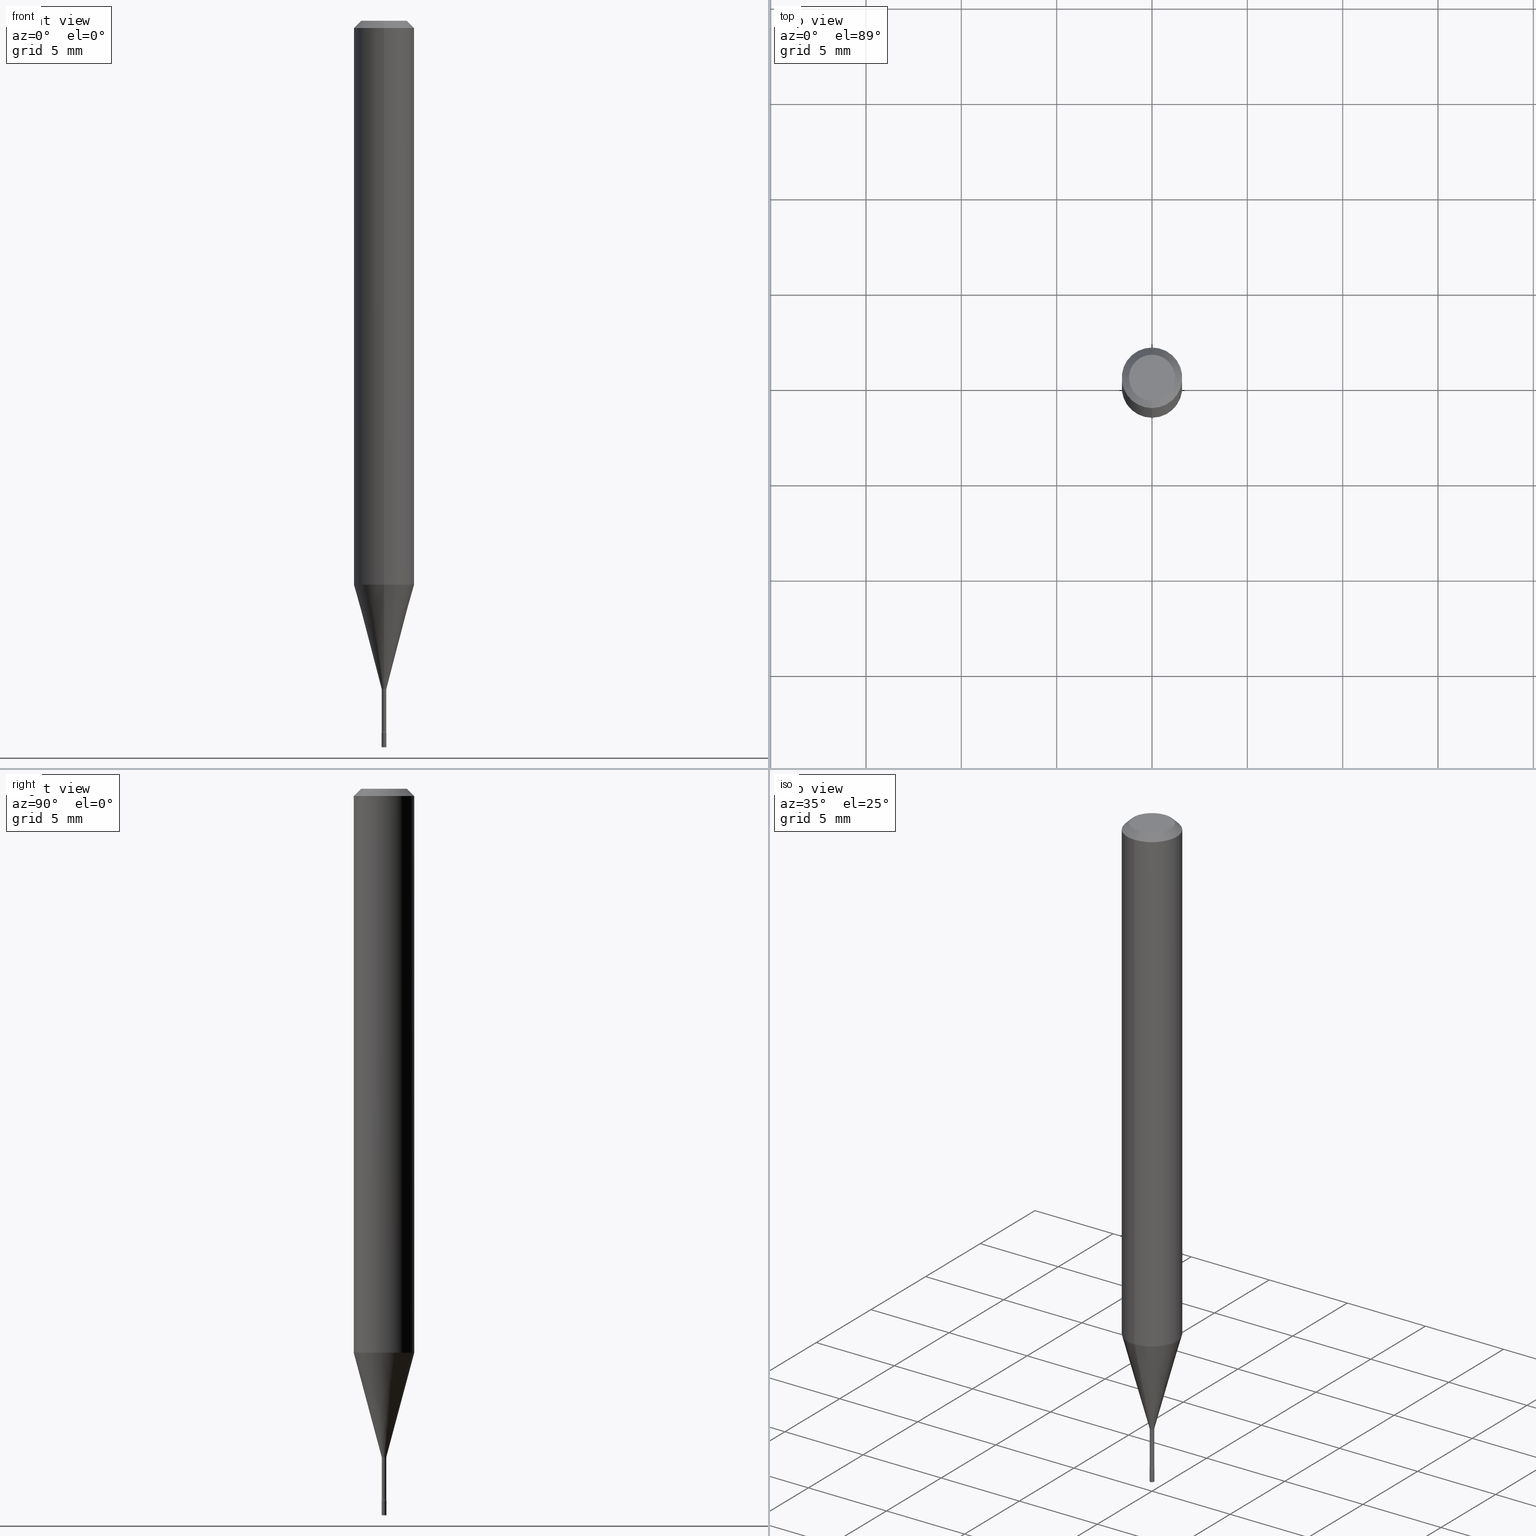
[diagram: canonical four-view strip — front | top / right | iso, engineering-drawing reading convention]
A machine part, canonical four-view strip (front | top / right | iso — engineering-drawing reading convention). The complete STEP part file that produces these views, byte-faithful:
ISO-10303-21;
HEADER;
FILE_DESCRIPTION (( 'STEP AP203' ),
    '1' );
FILE_NAME ('01339.STEP',
    '2024-03-08T21:15:00',
    ( '' ),
    ( '' ),
    'SwSTEP 2.0',
    'SolidWorks 2023',
    '' );
FILE_SCHEMA (( 'CONFIG_CONTROL_DESIGN' ));
ENDSEC;

DATA;
#1 = VECTOR ( 'NONE', #65, 39.37007874015748143 ) ;
#2 = PERSON_AND_ORGANIZATION ( #291, #173 ) ;
#3 = CARTESIAN_POINT ( 'NONE',  ( 3.367344808526216247E-29, -4.815504389611313492E-15, -1.378092501787273605 ) ) ;
#4 = VERTEX_POINT ( 'NONE', #192 ) ;
#5 = DIRECTION ( 'NONE',  ( -1.000000000000000000, 6.982962677686265922E-15, -4.876176775795935793E-29 ) ) ;
#6 = COORDINATED_UNIVERSAL_TIME_OFFSET ( 5, 0, .BEHIND. ) ;
#7 = ORIENTED_EDGE ( 'NONE', *, *, #357, .T. ) ;
#8 = CARTESIAN_POINT ( 'NONE',  ( -3.638900483453789669E-17, -0.005211112605668734299, -1.378092501787273605 ) ) ;
#9 = ORIENTED_EDGE ( 'NONE', *, *, #258, .T. ) ;
#10 = CIRCLE ( 'NONE', #306, 0.005211112605663917839 ) ;
#11 = CIRCLE ( 'NONE', #265, 0.01500000000000000638 ) ;
#12 = AXIS2_PLACEMENT_3D ( 'NONE', #70, #274, #449 ) ;
#13 = ADVANCED_FACE ( 'NONE', ( #287 ), #361, .F. ) ;
#14 = DIRECTION ( 'NONE',  ( 1.000000000000000000, -6.982962677686336130E-15, 0.000000000000000000 ) ) ;
#15 = DIRECTION ( 'NONE',  ( -6.982962677686265922E-15, -1.000000000000000000, 3.494325949358259350E-15 ) ) ;
#16 = AXIS2_PLACEMENT_3D ( 'NONE', #221, #64, #434 ) ;
#17 = PRODUCT_DEFINITION ( 'UNKNOWN', '', #468, #441 ) ;
#18 = ORIENTED_EDGE ( 'NONE', *, *, #66, .T. ) ;
#19 = DIRECTION ( 'NONE',  ( -2.445468806185136597E-29, 3.491481338843145583E-15, 1.000000000000000000 ) ) ;
#20 = PRODUCT_DEFINITION_SHAPE ( 'NONE', 'NONE',  #17 ) ;
#21 = CARTESIAN_POINT ( 'NONE',  ( 2.844915954601450546E-29, -4.068399895600381940E-15, -1.164287463322519312 ) ) ;
#22 = DIRECTION ( 'NONE',  ( -6.982962677686265922E-15, -1.000000000000000000, 4.370956789862821150E-15 ) ) ;
#23 = DIRECTION ( 'NONE',  ( -6.982962677686266711E-15, -1.000000000000000000, 3.494325949358259744E-15 ) ) ;
#24 = CIRCLE ( 'NONE', #165, 0.004999999999999997502 ) ;
#25 = LOCAL_TIME ( 16, 15, 0.000000000000000000, #374 ) ;
#26 = ADVANCED_FACE ( 'NONE', ( #407 ), #33, .T. ) ;
#27 = CARTESIAN_POINT ( 'NONE',  ( 3.376595547336323602E-29, -4.829407693671720088E-15, -1.381974787463811305 ) ) ;
#28 = CARTESIAN_POINT ( 'NONE',  ( 0.000000000000000000, 0.000000000000000000, 0.000000000000000000 ) ) ;
#29 = DIRECTION ( 'NONE',  ( 1.000000000000000000, -6.982962677686336130E-15, 0.000000000000000000 ) ) ;
#30 = PLANE ( 'NONE',  #436 ) ;
#31 = VERTEX_POINT ( 'NONE', #162 ) ;
#32 = CC_DESIGN_DATE_AND_TIME_ASSIGNMENT ( #86, #96, ( #285 ) ) ;
#33 = CONICAL_SURFACE ( 'NONE', #333, 0.005211112605663917839, 0.2617993877991496299 ) ;
#34 = CONICAL_SURFACE ( 'NONE', #237, 0.06250000000000000000, 0.7853981633974482790 ) ;
#35 = DIRECTION ( 'NONE',  ( -2.445468806185136597E-29, 3.491481338843145583E-15, 1.000000000000000000 ) ) ;
#36 = DIRECTION ( 'NONE',  ( -6.982962677686266711E-15, -1.000000000000000000, 0.000000000000000000 ) ) ;
#37 = ORIENTED_EDGE ( 'NONE', *, *, #281, .F. ) ;
#38 = DIRECTION ( 'NONE',  ( -6.982962677686266711E-15, -1.000000000000000000, 3.494325949358259350E-15 ) ) ;
#39 = DIRECTION ( 'NONE',  ( -2.445468806185136597E-29, 3.491481338843145583E-15, 1.000000000000000000 ) ) ;
#40 = DIRECTION ( 'NONE',  ( -6.982962677686266711E-15, -1.000000000000000000, 0.000000000000000000 ) ) ;
#41 = ORIENTED_EDGE ( 'NONE', *, *, #282, .T. ) ;
#42 = CARTESIAN_POINT ( 'NONE',  ( 3.491481338846799833E-17, 0.004999999999994760372, -1.500000000000000222 ) ) ;
#43 = AXIS2_PLACEMENT_3D ( 'NONE', #74, #219, #22 ) ;
#44 = AXIS2_PLACEMENT_3D ( 'NONE', #439, #72, #217 ) ;
#45 = ORIENTED_EDGE ( 'NONE', *, *, #183, .T. ) ;
#46 = PERSON_AND_ORGANIZATION ( #291, #173 ) ;
#47 = DIRECTION ( 'NONE',  ( -1.807323732225325801E-15, -0.2588190451025175753, 0.9659258262890690894 ) ) ;
#48 = PERSON_AND_ORGANIZATION_ROLE ( 'creator' ) ;
#49 = EDGE_CURVE ( 'NONE', #148, #202, #10, .T. ) ;
#50 = ADVANCED_FACE ( 'NONE', ( #440 ), #241, .T. ) ;
#51 = ORIENTED_EDGE ( 'NONE', *, *, #405, .T. ) ;
#52 = PERSON_AND_ORGANIZATION ( #291, #173 ) ;
#53 = AXIS2_PLACEMENT_3D ( 'NONE', #218, #227, #348 ) ;
#54 = DIRECTION ( 'NONE',  ( -6.982962677686266711E-15, -1.000000000000000000, 0.000000000000000000 ) ) ;
#55 = EDGE_CURVE ( 'NONE', #324, #137, #284, .T. ) ;
#56 = LINE ( 'NONE', #8, #127 ) ;
#57 = CARTESIAN_POINT ( 'NONE',  ( 1.399769189447734763E-16, 0.01969999999999517276, -1.381974787463811305 ) ) ;
#58 = ORIENTED_EDGE ( 'NONE', *, *, #357, .F. ) ;
#59 = EDGE_CURVE ( 'NONE', #199, #371, #253, .T. ) ;
#60 = LINE ( 'NONE', #271, #318 ) ;
#61 = VECTOR ( 'NONE', #477, 39.37007874015748854 ) ;
#62 = CC_DESIGN_APPROVAL ( #71, ( #17 ) ) ;
#63 = DIRECTION ( 'NONE',  ( -2.443482425279177286E-29, 3.494325949358259350E-15, 1.000000000000000000 ) ) ;
#64 = DIRECTION ( 'NONE',  ( -2.443482425279177286E-29, 3.494325949358259350E-15, 1.000000000000000000 ) ) ;
#65 = DIRECTION ( 'NONE',  ( 1.839019923739595977E-15, 0.2588190451025243477, 0.9659258262890673130 ) ) ;
#66 = EDGE_CURVE ( 'NONE', #337, #4, #491, .T. ) ;
#67 = CARTESIAN_POINT ( 'NONE',  ( -4.287811248607203282E-16, -0.06250000000000005551, -0.01499999999999981209 ) ) ;
#68 = CYLINDRICAL_SURFACE ( 'NONE', #171, 0.004999999999999997502 ) ;
#69 = CIRCLE ( 'NONE', #446, 0.04749999999999999362 ) ;
#70 = CARTESIAN_POINT ( 'NONE',  ( 3.665223637918772884E-31, -5.241488924037400118E-17, -0.01500000000000003067 ) ) ;
#71 = APPROVAL ( #207, 'UNSPECIFIED' ) ;
#72 = DIRECTION ( 'NONE',  ( 0.000000000000000000, 0.000000000000000000, 1.000000000000000000 ) ) ;
#73 = EDGE_LOOP ( 'NONE', ( #450, #268, #245, #310 ) ) ;
#74 = CARTESIAN_POINT ( 'NONE',  ( 2.844915954601450546E-29, -4.068399895600381940E-15, -1.164287463322519312 ) ) ;
#75 = ORIENTED_EDGE ( 'NONE', *, *, #496, .T. ) ;
#76 = LENGTH_MEASURE_WITH_UNIT ( LENGTH_MEASURE( 0.02539999999999999897 ), #475 );
#77 = VERTEX_POINT ( 'NONE', #499 ) ;
#78 = AXIS2_PLACEMENT_3D ( 'NONE', #423, #105, #510 ) ;
#79 = LOCAL_TIME ( 16, 15, 0.000000000000000000, #6 ) ;
#80 = DIRECTION ( 'NONE',  ( -6.982962677686265133E-15, -1.000000000000000000, 3.494325949358259350E-15 ) ) ;
#81 = CARTESIAN_POINT ( 'NONE',  ( 3.584558826531419241E-29, -5.126324140382401988E-15, -1.467015037688680357 ) ) ;
#82 = DIRECTION ( 'NONE',  ( 2.443482425279177006E-29, -3.494325949358259350E-15, -1.000000000000000000 ) ) ;
#83 = EDGE_LOOP ( 'NONE', ( #300, #115 ) ) ;
#84 = FACE_OUTER_BOUND ( 'NONE', #486, .T. ) ;
#85 = EDGE_LOOP ( 'NONE', ( #481, #9, #345, #213 ) ) ;
#86 = DATE_AND_TIME ( #456, #145 ) ;
#87 = DIRECTION ( 'NONE',  ( 6.982962677686265922E-15, 1.000000000000000000, -3.494325949358259350E-15 ) ) ;
#88 = ORIENTED_EDGE ( 'NONE', *, *, #428, .T. ) ;
#89 = FACE_OUTER_BOUND ( 'NONE', #83, .T. ) ;
#90 = AXIS2_PLACEMENT_3D ( 'NONE', #387, #500, #309 ) ;
#91 = LOCAL_TIME ( 16, 15, 0.000000000000000000, #174 ) ;
#92 = APPROVAL_STATUS ( 'not_yet_approved' ) ;
#93 = CC_DESIGN_PERSON_AND_ORGANIZATION_ASSIGNMENT ( #129, #293, ( #468 ) ) ;
#94 = EDGE_CURVE ( 'NONE', #399, #31, #97, .T. ) ;
#95 = EDGE_LOOP ( 'NONE', ( #280, #120 ) ) ;
#96 = DATE_TIME_ROLE ( 'classification_date' ) ;
#97 = CIRCLE ( 'NONE', #334, 0.06250000000000000000 ) ;
#98 = DIRECTION ( 'NONE',  ( -2.443482425279177286E-29, 3.494325949358259350E-15, 1.000000000000000000 ) ) ;
#99 = VECTOR ( 'NONE', #314, 39.37007874015748143 ) ;
#100 = CARTESIAN_POINT ( 'NONE',  ( 3.339550858076058473E-17, 0.004699999999995169847, -1.381974787463811305 ) ) ;
#101 = DIRECTION ( 'NONE',  ( -2.443482425279177286E-29, 3.494325949358259350E-15, 1.000000000000000000 ) ) ;
#102 = CYLINDRICAL_SURFACE ( 'NONE', #325, 0.06250000000000000000 ) ;
#103 = CIRCLE ( 'NONE', #474, 0.01500000000000001853 ) ;
#104 = DIRECTION ( 'NONE',  ( -6.982962677686265133E-15, -1.000000000000000000, 3.494325949358259350E-15 ) ) ;
#105 = DIRECTION ( 'NONE',  ( -1.000000000000000000, 6.982962677686265922E-15, -4.883557194083112340E-29 ) ) ;
#106 = ADVANCED_FACE ( 'NONE', ( #181 ), #133, .F. ) ;
#107 = FACE_OUTER_BOUND ( 'NONE', #254, .T. ) ;
#108 = FACE_OUTER_BOUND ( 'NONE', #164, .T. ) ;
#109 = DIRECTION ( 'NONE',  ( -6.982962677686266711E-15, -1.000000000000000000, 0.000000000000000000 ) ) ;
#110 = AXIS2_PLACEMENT_3D ( 'NONE', #267, #225, #392 ) ;
#111 = CC_DESIGN_APPROVAL ( #519, ( #285 ) ) ;
#112 = PRODUCT_RELATED_PRODUCT_CATEGORY ( 'detail', '', ( #131 ) ) ;
#113 = CARTESIAN_POINT ( 'NONE',  ( 3.376831105346749241E-29, -4.829070361193661062E-15, -1.381974787463811305 ) ) ;
#114 = CARTESIAN_POINT ( 'NONE',  ( -0.004999999999999997502, -5.149322651394067240E-15, -1.500000000000000222 ) ) ;
#115 = ORIENTED_EDGE ( 'NONE', *, *, #438, .F. ) ;
#116 = EDGE_LOOP ( 'NONE', ( #209, #410, #88, #382 ) ) ;
#117 = VECTOR ( 'NONE', #462, 39.37007874015748143 ) ;
#118 = CARTESIAN_POINT ( 'NONE',  ( 4.440892098500912124E-16, 0.06249999999999995143, -0.01500000000000024751 ) ) ;
#119 = EDGE_CURVE ( 'NONE', #228, #77, #147, .T. ) ;
#120 = ORIENTED_EDGE ( 'NONE', *, *, #405, .F. ) ;
#121 = CARTESIAN_POINT ( 'NONE',  ( 3.376595547336323602E-29, -4.829407693671720088E-15, -1.381974787463811305 ) ) ;
#122 = ORIENTED_EDGE ( 'NONE', *, *, #94, .T. ) ;
#123 = CARTESIAN_POINT ( 'NONE',  ( 3.316907271900976096E-16, 0.04749999999999999362, -1.803698785587178532E-16 ) ) ;
#124 = ORIENTED_EDGE ( 'NONE', *, *, #59, .F. ) ;
#125 = SECURITY_CLASSIFICATION_LEVEL ( 'unclassified' ) ;
#126 = CLOSED_SHELL ( 'NONE', ( #317, #430, #313, #169 ) ) ;
#127 = VECTOR ( 'NONE', #47, 39.37007874015748854 ) ;
#128 = ADVANCED_FACE ( 'NONE', ( #89 ), #247, .F. ) ;
#129 = PERSON_AND_ORGANIZATION ( #291, #173 ) ;
#130 = COORDINATED_UNIVERSAL_TIME_OFFSET ( 5, 0, .BEHIND. ) ;
#131 = PRODUCT ( '01339', '01339', '', ( #170 ) ) ;
#132 = VERTEX_POINT ( 'NONE', #150 ) ;
#133 = TOROIDAL_SURFACE ( 'NONE', #453, 0.01970000000000000223, 0.01500000000000001679 ) ;
#134 = CIRCLE ( 'NONE', #239, 0.004699999999999999317 ) ;
#135 = PLANE ( 'NONE',  #178 ) ;
#136 = CARTESIAN_POINT ( 'NONE',  ( 0.000000000000000000, 0.000000000000000000, 0.000000000000000000 ) ) ;
#137 = VERTEX_POINT ( 'NONE', #257 ) ;
#138 = FACE_OUTER_BOUND ( 'NONE', #389, .T. ) ;
#139 = DIRECTION ( 'NONE',  ( 1.000000000000000000, -7.105427357601001070E-15, 4.926350344973703623E-29 ) ) ;
#140 = ORIENTED_EDGE ( 'NONE', *, *, #321, .T. ) ;
#141 = EDGE_CURVE ( 'NONE', #408, #363, #205, .T. ) ;
#142 = EDGE_CURVE ( 'NONE', #228, #160, #498, .T. ) ;
#143 = DIRECTION ( 'NONE',  ( -6.982962677686265922E-15, -1.000000000000000000, 4.370956789862821150E-15 ) ) ;
#144 = CIRCLE ( 'NONE', #292, 0.005211112605663917839 ) ;
#145 = LOCAL_TIME ( 16, 15, 0.000000000000000000, #211 ) ;
#146 = ORIENTED_EDGE ( 'NONE', *, *, #266, .T. ) ;
#147 = LINE ( 'NONE', #200, #155 ) ;
#148 = VERTEX_POINT ( 'NONE', #234 ) ;
#149 = FACE_OUTER_BOUND ( 'NONE', #289, .T. ) ;
#150 = CARTESIAN_POINT ( 'NONE',  ( -3.281992458508968664E-17, -0.004700000000005138436, -1.467015037688680357 ) ) ;
#151 = CARTESIAN_POINT ( 'NONE',  ( -3.281992458512549353E-17, -0.004700000000000006256, 1.642333196198383854E-17 ) ) ;
#152 = CARTESIAN_POINT ( 'NONE',  ( 3.491481338846726493E-17, 0.004999999999994865323, -1.470000000000000195 ) ) ;
#153 = ORIENTED_EDGE ( 'NONE', *, *, #448, .T. ) ;
#154 =( CONVERSION_BASED_UNIT ( 'INCH', #76 ) LENGTH_UNIT ( ) NAMED_UNIT ( #311 ) );
#155 = VECTOR ( 'NONE', #429, 39.37007874015748143 ) ;
#156 = APPROVAL_PERSON_ORGANIZATION ( #487, #71, #372 ) ;
#157 = LINE ( 'NONE', #360, #99 ) ;
#158 = DIRECTION ( 'NONE',  ( -2.443482425279177286E-29, 3.494325949358259350E-15, 1.000000000000000000 ) ) ;
#159 = DIRECTION ( 'NONE',  ( -2.443482425279177286E-29, 3.494325949358259350E-15, 1.000000000000000000 ) ) ;
#160 = VERTEX_POINT ( 'NONE', #114 ) ;
#161 = APPLICATION_PROTOCOL_DEFINITION ( 'international standard', 'config_control_design', 1994, #244 ) ;
#162 = CARTESIAN_POINT ( 'NONE',  ( -4.364351673553912750E-16, -0.06250000000000005551, -0.01499999999999981209 ) ) ;
#163 = ADVANCED_FACE ( 'NONE', ( #84 ), #243, .T. ) ;
#164 = EDGE_LOOP ( 'NONE', ( #331, #403, #351, #451 ) ) ;
#165 = AXIS2_PLACEMENT_3D ( 'NONE', #347, #505, #304 ) ;
#166 = LOCAL_TIME ( 16, 15, 0.000000000000000000, #130 ) ;
#167 = APPROVAL_DATE_TIME ( #175, #452 ) ;
#168 = DATE_AND_TIME ( #421, #25 ) ;
#169 = ADVANCED_FACE ( 'NONE', ( #409 ), #135, .T. ) ;
#170 = MECHANICAL_CONTEXT ( 'NONE', #244, 'mechanical' ) ;
#171 = AXIS2_PLACEMENT_3D ( 'NONE', #136, #19, #303 ) ;
#172 = ORIENTED_EDGE ( 'NONE', *, *, #55, .T. ) ;
#173 = ORGANIZATION ( 'UNSPECIFIED', 'UNSPECIFIED', '' ) ;
#174 = COORDINATED_UNIVERSAL_TIME_OFFSET ( 5, 0, .BEHIND. ) ;
#175 = DATE_AND_TIME ( #415, #79 ) ;
#176 = EDGE_CURVE ( 'NONE', #202, #148, #144, .T. ) ;
#177 = DIRECTION ( 'NONE',  ( -6.982962677686266711E-15, -1.000000000000000000, 0.000000000000000000 ) ) ;
#178 = AXIS2_PLACEMENT_3D ( 'NONE', #42, #369, #5 ) ;
#179 = VERTEX_POINT ( 'NONE', #340 ) ;
#180 = CARTESIAN_POINT ( 'NONE',  ( 3.702718207185751166E-17, 0.005211112605659102247, -1.378092501787273605 ) ) ;
#181 = FACE_OUTER_BOUND ( 'NONE', #116, .T. ) ;
#182 = DIRECTION ( 'NONE',  ( -2.443482425279177286E-29, 3.494325949358259350E-15, 1.000000000000000000 ) ) ;
#183 = EDGE_CURVE ( 'NONE', #179, #132, #232, .T. ) ;
#184 = EDGE_CURVE ( 'NONE', #179, #363, #11, .T. ) ;
#185 = LINE ( 'NONE', #180, #1 ) ;
#186 = CARTESIAN_POINT ( 'NONE',  ( 3.376831105346749241E-29, -4.829070361193661062E-15, -1.381974787463811305 ) ) ;
#187 = LINE ( 'NONE', #432, #212 ) ;
#188 = AXIS2_PLACEMENT_3D ( 'NONE', #28, #182, #190 ) ;
#189 = CIRCLE ( 'NONE', #276, 0.004999999999999997502 ) ;
#190 = DIRECTION ( 'NONE',  ( -6.982962677686265922E-15, -1.000000000000000000, 3.494325949358259350E-15 ) ) ;
#191 = DIRECTION ( 'NONE',  ( -2.443482425279177286E-29, 3.494325949358259350E-15, 1.000000000000000000 ) ) ;
#192 = CARTESIAN_POINT ( 'NONE',  ( -3.773273898774340269E-16, -0.04749999999999999362, 1.372016906661161524E-16 ) ) ;
#193 = AXIS2_PLACEMENT_3D ( 'NONE', #471, #263, #463 ) ;
#194 = ORIENTED_EDGE ( 'NONE', *, *, #66, .F. ) ;
#195 = ORIENTED_EDGE ( 'NONE', *, *, #183, .F. ) ;
#196 = AXIS2_PLACEMENT_3D ( 'NONE', #81, #191, #80 ) ;
#197 = DIRECTION ( 'NONE',  ( -2.443482425279177286E-29, 3.494325949358259350E-15, 1.000000000000000000 ) ) ;
#198 = ADVANCED_FACE ( 'NONE', ( #108 ), #425, .F. ) ;
#199 = VERTEX_POINT ( 'NONE', #341 ) ;
#200 = CARTESIAN_POINT ( 'NONE',  ( 0.004999999999999997502, -3.491481338843131630E-17, 2.438088387897967108E-31 ) ) ;
#201 = DIRECTION ( 'NONE',  ( 1.000000000000000000, -6.982962677686265922E-15, 4.876176775795935793E-29 ) ) ;
#202 = VERTEX_POINT ( 'NONE', #391 ) ;
#203 = DIRECTION ( 'NONE',  ( -2.443482425279177286E-29, 3.494325949358259350E-15, 1.000000000000000000 ) ) ;
#204 = ORIENTED_EDGE ( 'NONE', *, *, #390, .T. ) ;
#205 = CIRCLE ( 'NONE', #275, 0.005000000000000001839 ) ;
#206 = AXIS2_PLACEMENT_3D ( 'NONE', #286, #437, #233 ) ;
#207 = APPROVAL_STATUS ( 'not_yet_approved' ) ;
#208 = ORIENTED_EDGE ( 'NONE', *, *, #520, .F. ) ;
#209 = ORIENTED_EDGE ( 'NONE', *, *, #176, .F. ) ;
#210 = MANIFOLD_SOLID_BREP ( 'Body-Move/Copy2[2]', #489 ) ;
#211 = COORDINATED_UNIVERSAL_TIME_OFFSET ( 5, 0, .BEHIND. ) ;
#212 = VECTOR ( 'NONE', #354, 39.37007874015748143 ) ;
#213 = ORIENTED_EDGE ( 'NONE', *, *, #240, .F. ) ;
#214 = CIRCLE ( 'NONE', #206, 0.005000000000000001839 ) ;
#215 = SHAPE_DEFINITION_REPRESENTATION ( #20, #501 ) ;
#216 = EDGE_CURVE ( 'NONE', #4, #31, #469, .T. ) ;
#217 = DIRECTION ( 'NONE',  ( 1.000000000000000000, 0.000000000000000000, 0.000000000000000000 ) ) ;
#218 = CARTESIAN_POINT ( 'NONE',  ( 3.584625462212559973E-29, -5.126228714294341744E-15, -1.467015037688680357 ) ) ;
#219 = DIRECTION ( 'NONE',  ( -2.443482425279177286E-29, 3.494325949358259350E-15, 1.000000000000000000 ) ) ;
#220 = CARTESIAN_POINT ( 'NONE',  ( 0.000000000000000000, 0.000000000000000000, 0.000000000000000000 ) ) ;
#221 = CARTESIAN_POINT ( 'NONE',  ( 3.584625462212559973E-29, -5.126228714294341744E-15, -1.467015037688680357 ) ) ;
#222 = AXIS2_PLACEMENT_3D ( 'NONE', #152, #315, #485 ) ;
#223 = DIRECTION ( 'NONE',  ( -6.982962677686265922E-15, -1.000000000000000000, 3.483106191921935554E-15 ) ) ;
#224 = VECTOR ( 'NONE', #197, 39.37007874015748143 ) ;
#225 = DIRECTION ( 'NONE',  ( -1.000000000000000000, 6.982962677686265922E-15, -4.883557194083112340E-29 ) ) ;
#226 = ADVANCED_FACE ( 'NONE', ( #298 ), #359, .F. ) ;
#227 = DIRECTION ( 'NONE',  ( -2.443482425279177286E-29, 3.494325949358259350E-15, 1.000000000000000000 ) ) ;
#228 = VERTEX_POINT ( 'NONE', #342 ) ;
#229 = DIRECTION ( 'NONE',  ( 7.105427357601000281E-15, 1.000000000000000000, 0.000000000000000000 ) ) ;
#230 = DIRECTION ( 'NONE',  ( 6.982962677686265922E-15, 1.000000000000000000, -3.483106191921935554E-15 ) ) ;
#231 = DIRECTION ( 'NONE',  ( 2.443482425279177286E-29, -3.494325949358259350E-15, -1.000000000000000000 ) ) ;
#232 = CIRCLE ( 'NONE', #53, 0.004700000000000012328 ) ;
#233 = DIRECTION ( 'NONE',  ( -6.982962677686266711E-15, -1.000000000000000000, 0.000000000000000000 ) ) ;
#234 = CARTESIAN_POINT ( 'NONE',  ( -3.638900483453789669E-17, -0.005211112605668734299, -1.378092501787273605 ) ) ;
#235 = CARTESIAN_POINT ( 'NONE',  ( 3.668203209277704895E-29, -5.237222008264718177E-15, -1.500000000000000222 ) ) ;
#236 = DIRECTION ( 'NONE',  ( 1.000000000000000000, -6.982962677686336130E-15, 0.000000000000000000 ) ) ;
#237 = AXIS2_PLACEMENT_3D ( 'NONE', #301, #231, #230 ) ;
#238 = CC_DESIGN_PERSON_AND_ORGANIZATION_ASSIGNMENT ( #370, #48, ( #17 ) ) ;
#239 = AXIS2_PLACEMENT_3D ( 'NONE', #113, #514, #447 ) ;
#240 = EDGE_CURVE ( 'NONE', #148, #137, #56, .T. ) ;
#241 = CYLINDRICAL_SURFACE ( 'NONE', #384, 0.004700000000000006256 ) ;
#242 = FACE_OUTER_BOUND ( 'NONE', #476, .T. ) ;
#243 = CYLINDRICAL_SURFACE ( 'NONE', #515, 0.004700000000000006256 ) ;
#244 = APPLICATION_CONTEXT ( 'configuration controlled 3d designs of mechanical parts and assemblies' ) ;
#245 = ORIENTED_EDGE ( 'NONE', *, *, #240, .T. ) ;
#246 = ORIENTED_EDGE ( 'NONE', *, *, #496, .F. ) ;
#247 = PLANE ( 'NONE',  #222 ) ;
#248 = DATE_AND_TIME ( #290, #166 ) ;
#249 = PERSON_AND_ORGANIZATION_ROLE ( 'classification_officer' ) ;
#250 = ORIENTED_EDGE ( 'NONE', *, *, #322, .T. ) ;
#251 = CARTESIAN_POINT ( 'NONE',  ( 3.584558826531419241E-29, -5.126324140382401988E-15, -1.467015037688680357 ) ) ;
#252 = ADVANCED_FACE ( 'NONE', ( #455 ), #34, .T. ) ;
#253 = CIRCLE ( 'NONE', #368, 0.004699999999999999317 ) ;
#254 = EDGE_LOOP ( 'NONE', ( #366, #51, #356, #442 ) ) ;
#255 = TOROIDAL_SURFACE ( 'NONE', #196, 0.01970000000000001958, 0.01500000000000000638 ) ;
#256 = APPROVAL_DATE_TIME ( #495, #71 ) ;
#257 = CARTESIAN_POINT ( 'NONE',  ( -4.364351673553632704E-16, -0.06250000000000409395, -1.164287463322519089 ) ) ;
#258 = EDGE_CURVE ( 'NONE', #202, #324, #185, .T. ) ;
#259 = VERTEX_POINT ( 'NONE', #386 ) ;
#260 = DIRECTION ( 'NONE',  ( -2.443482425279177286E-29, 3.494325949358259350E-15, 1.000000000000000000 ) ) ;
#261 = CC_DESIGN_PERSON_AND_ORGANIZATION_ASSIGNMENT ( #328, #297, ( #468 ) ) ;
#262 = DIRECTION ( 'NONE',  ( -2.443482425279177286E-29, 3.494325949358259350E-15, 1.000000000000000000 ) ) ;
#263 = DIRECTION ( 'NONE',  ( -2.443482425279177286E-29, 3.494325949358259350E-15, 1.000000000000000000 ) ) ;
#264 = AXIS2_PLACEMENT_3D ( 'NONE', #123, #82, #87 ) ;
#265 = AXIS2_PLACEMENT_3D ( 'NONE', #397, #139, #472 ) ;
#266 = EDGE_CURVE ( 'NONE', #132, #179, #308, .T. ) ;
#267 = CARTESIAN_POINT ( 'NONE',  ( -1.375643647503837156E-16, -0.01970000000000514395, -1.467015037688680357 ) ) ;
#268 = ORIENTED_EDGE ( 'NONE', *, *, #176, .T. ) ;
#269 = CARTESIAN_POINT ( 'NONE',  ( 4.440892098500909166E-16, 0.06249999999999592687, -1.164287463322519756 ) ) ;
#270 = CARTESIAN_POINT ( 'NONE',  ( 7.032047229781433720E-46, -1.005624794265939985E-31, -2.877879192840109893E-17 ) ) ;
#271 = CARTESIAN_POINT ( 'NONE',  ( 4.364351673553919652E-16, 0.06249999999999995143, -0.01500000000000024751 ) ) ;
#272 = ORIENTED_EDGE ( 'NONE', *, *, #428, .F. ) ;
#273 = EDGE_CURVE ( 'NONE', #132, #408, #394, .T. ) ;
#274 = DIRECTION ( 'NONE',  ( 2.443482425279177286E-29, -3.494325949358259350E-15, -1.000000000000000000 ) ) ;
#275 = AXIS2_PLACEMENT_3D ( 'NONE', #512, #316, #177 ) ;
#276 = AXIS2_PLACEMENT_3D ( 'NONE', #323, #39, #29 ) ;
#277 = FACE_OUTER_BOUND ( 'NONE', #484, .T. ) ;
#278 = DIRECTION ( 'NONE',  ( -2.443482425279177286E-29, 3.494325949358259350E-15, 1.000000000000000000 ) ) ;
#279 = ORIENTED_EDGE ( 'NONE', *, *, #281, .T. ) ;
#280 = ORIENTED_EDGE ( 'NONE', *, *, #142, .F. ) ;
#281 = EDGE_CURVE ( 'NONE', #31, #399, #413, .T. ) ;
#282 = EDGE_CURVE ( 'NONE', #337, #399, #60, .T. ) ;
#283 = CARTESIAN_POINT ( 'NONE',  ( 3.668203209277704895E-29, -5.237222008264718177E-15, -1.500000000000000222 ) ) ;
#284 = CIRCLE ( 'NONE', #43, 0.06250000000000000000 ) ;
#285 = SECURITY_CLASSIFICATION ( '', '', #125 ) ;
#286 = CARTESIAN_POINT ( 'NONE',  ( 3.591919165160390936E-29, -5.136659145556641836E-15, -1.470000000000000195 ) ) ;
#287 = FACE_OUTER_BOUND ( 'NONE', #457, .T. ) ;
#288 = ORIENTED_EDGE ( 'NONE', *, *, #216, .F. ) ;
#289 = EDGE_LOOP ( 'NONE', ( #58, #172, #365, #388 ) ) ;
#290 = CALENDAR_DATE ( 2024, 8, 3 ) ;
#291 = PERSON ( 'UNSPECIFIED', 'UNSPECIFIED', 'UNSPECIFIED', ('UNSPECIFIED'), ('UNSPECIFIED'), ('UNSPECIFIED') ) ;
#292 = AXIS2_PLACEMENT_3D ( 'NONE', #379, #459, #54 ) ;
#293 = PERSON_AND_ORGANIZATION_ROLE ( 'design_supplier' ) ;
#294 = PERSON_AND_ORGANIZATION_ROLE ( 'design_owner' ) ;
#295 = EDGE_CURVE ( 'NONE', #202, #371, #103, .T. ) ;
#296 = ORIENTED_EDGE ( 'NONE', *, *, #464, .F. ) ;
#297 = PERSON_AND_ORGANIZATION_ROLE ( 'creator' ) ;
#298 = FACE_OUTER_BOUND ( 'NONE', #443, .T. ) ;
#299 = CIRCLE ( 'NONE', #375, 0.06250000000000000000 ) ;
#300 = ORIENTED_EDGE ( 'NONE', *, *, #141, .F. ) ;
#301 = CARTESIAN_POINT ( 'NONE',  ( 3.665223637918772884E-31, -5.241488924037400118E-17, -0.01500000000000003067 ) ) ;
#302 = DIRECTION ( 'NONE',  ( -2.445468806185136597E-29, 3.491481338843145583E-15, 1.000000000000000000 ) ) ;
#303 = DIRECTION ( 'NONE',  ( 1.000000000000000000, -6.982962677686266711E-15, 4.876176775795936914E-29 ) ) ;
#304 = DIRECTION ( 'NONE',  ( 1.000000000000000000, -6.982962677686336130E-15, 0.000000000000000000 ) ) ;
#305 = DIRECTION ( 'NONE',  ( -6.982962677686266711E-15, -1.000000000000000000, 3.494325949358259350E-15 ) ) ;
#306 = AXIS2_PLACEMENT_3D ( 'NONE', #3, #278, #36 ) ;
#307 = ORIENTED_EDGE ( 'NONE', *, *, #119, .F. ) ;
#308 = CIRCLE ( 'NONE', #16, 0.004700000000000012328 ) ;
#309 = DIRECTION ( 'NONE',  ( 1.000000000000000000, -6.982962677686266711E-15, 4.876176775795936914E-29 ) ) ;
#310 = ORIENTED_EDGE ( 'NONE', *, *, #55, .F. ) ;
#311 = DIMENSIONAL_EXPONENTS ( 1.000000000000000000, 0.000000000000000000, 0.000000000000000000, 0.000000000000000000, 0.000000000000000000, 0.000000000000000000, 0.000000000000000000 ) ;
#312 = CYLINDRICAL_SURFACE ( 'NONE', #188, 0.06250000000000000000 ) ;
#313 = ADVANCED_FACE ( 'NONE', ( #107 ), #470, .T. ) ;
#314 = DIRECTION ( 'NONE',  ( -2.443482425279177286E-29, 3.494325949358259350E-15, 1.000000000000000000 ) ) ;
#315 = DIRECTION ( 'NONE',  ( -2.443482425279177006E-29, 3.494325949358259350E-15, 1.000000000000000000 ) ) ;
#316 = DIRECTION ( 'NONE',  ( -2.443482425279177286E-29, 3.494325949358259350E-15, 1.000000000000000000 ) ) ;
#317 = ADVANCED_FACE ( 'NONE', ( #138 ), #68, .T. ) ;
#318 = VECTOR ( 'NONE', #346, 39.37007874015748854 ) ;
#319 = CARTESIAN_POINT ( 'NONE',  ( 3.339550858072474703E-17, 0.004700000000000006256, -1.642333196198383854E-17 ) ) ;
#320 = DIRECTION ( 'NONE',  ( -6.982962677686265922E-15, -1.000000000000000000, 3.494325949358258956E-15 ) ) ;
#321 = EDGE_CURVE ( 'NONE', #148, #199, #467, .T. ) ;
#322 = EDGE_CURVE ( 'NONE', #137, #324, #299, .T. ) ;
#323 = CARTESIAN_POINT ( 'NONE',  ( 3.594839145092150820E-29, -5.132477568099424807E-15, -1.470000000000000195 ) ) ;
#324 = VERTEX_POINT ( 'NONE', #269 ) ;
#325 = AXIS2_PLACEMENT_3D ( 'NONE', #383, #260, #15 ) ;
#326 = ORIENTED_EDGE ( 'NONE', *, *, #448, .F. ) ;
#327 = CC_DESIGN_SECURITY_CLASSIFICATION ( #285, ( #468 ) ) ;
#328 = PERSON_AND_ORGANIZATION ( #291, #173 ) ;
#329 = APPLICATION_CONTEXT ( 'configuration controlled 3d designs of mechanical parts and assemblies' ) ;
#330 = EDGE_LOOP ( 'NONE', ( #402, #493, #279, #420 ) ) ;
#331 = ORIENTED_EDGE ( 'NONE', *, *, #184, .F. ) ;
#332 = APPLICATION_PROTOCOL_DEFINITION ( 'international standard', 'config_control_design', 1994, #329 ) ;
#333 = AXIS2_PLACEMENT_3D ( 'NONE', #518, #158, #40 ) ;
#334 = AXIS2_PLACEMENT_3D ( 'NONE', #426, #63, #223 ) ;
#335 = CONICAL_SURFACE ( 'NONE', #12, 0.06250000000000000000, 0.7853981633974482790 ) ;
#336 = CC_DESIGN_PERSON_AND_ORGANIZATION_ASSIGNMENT ( #2, #294, ( #131 ) ) ;
#337 = VERTEX_POINT ( 'NONE', #349 ) ;
#338 = EDGE_CURVE ( 'NONE', #4, #337, #69, .T. ) ;
#339 = DATE_TIME_ROLE ( 'creation_date' ) ;
#340 = CARTESIAN_POINT ( 'NONE',  ( 3.446132268440079019E-17, 0.004699999999994886220, -1.467015037688680357 ) ) ;
#341 = CARTESIAN_POINT ( 'NONE',  ( -3.281992458509167728E-17, -0.004700000000004827920, -1.381974787463811305 ) ) ;
#342 = CARTESIAN_POINT ( 'NONE',  ( 0.004999999999999997502, -5.272136821653149826E-15, -1.500000000000000222 ) ) ;
#343 = AXIS2_PLACEMENT_3D ( 'NONE', #235, #302, #14 ) ;
#344 = APPROVAL_PERSON_ORGANIZATION ( #494, #519, #417 ) ;
#345 = ORIENTED_EDGE ( 'NONE', *, *, #322, .F. ) ;
#346 = DIRECTION ( 'NONE',  ( 4.937700262164547253E-15, 0.7071067811865450192, -0.7071067811865499042 ) ) ;
#347 = CARTESIAN_POINT ( 'NONE',  ( 3.594839145092150820E-29, -5.132477568099424807E-15, -1.470000000000000195 ) ) ;
#348 = DIRECTION ( 'NONE',  ( -6.982962677686265922E-15, -1.000000000000000000, 0.000000000000000000 ) ) ;
#349 = CARTESIAN_POINT ( 'NONE',  ( 3.840629472727447874E-16, 0.04749999999999999362, -1.947592745229183872E-16 ) ) ;
#350 = DIRECTION ( 'NONE',  ( -2.443482425279177286E-29, 3.494325949358259350E-15, 1.000000000000000000 ) ) ;
#351 = ORIENTED_EDGE ( 'NONE', *, *, #273, .T. ) ;
#352 = AXIS2_PLACEMENT_3D ( 'NONE', #121, #350, #305 ) ;
#353 = EDGE_CURVE ( 'NONE', #160, #259, #187, .T. ) ;
#354 = DIRECTION ( 'NONE',  ( -2.445468806185136877E-29, 3.491481338843145188E-15, 1.000000000000000000 ) ) ;
#355 = CARTESIAN_POINT ( 'NONE',  ( 3.552713678804093402E-17, 0.004999999999994865323, -1.470000000000000195 ) ) ;
#356 = ORIENTED_EDGE ( 'NONE', *, *, #119, .T. ) ;
#357 = EDGE_CURVE ( 'NONE', #324, #399, #466, .T. ) ;
#358 = ADVANCED_FACE ( 'NONE', ( #149 ), #312, .T. ) ;
#359 = TOROIDAL_SURFACE ( 'NONE', #352, 0.01970000000000000223, 0.01500000000000001679 ) ;
#360 = CARTESIAN_POINT ( 'NONE',  ( -4.364351673553916201E-16, -0.06250000000000000000, 2.183953718348912094E-16 ) ) ;
#361 = PLANE ( 'NONE',  #264 ) ;
#362 =( NAMED_UNIT ( * ) PLANE_ANGLE_UNIT ( ) SI_UNIT ( $, .RADIAN. ) );
#363 = VERTEX_POINT ( 'NONE', #355 ) ;
#364 = LINE ( 'NONE', #151, #454 ) ;
#365 = ORIENTED_EDGE ( 'NONE', *, *, #464, .T. ) ;
#366 = ORIENTED_EDGE ( 'NONE', *, *, #353, .F. ) ;
#367 = CARTESIAN_POINT ( 'NONE',  ( 3.594839145092150820E-29, -5.132477568099424807E-15, -1.470000000000000195 ) ) ;
#368 = AXIS2_PLACEMENT_3D ( 'NONE', #186, #262, #465 ) ;
#369 = DIRECTION ( 'NONE',  ( 2.438088387897960049E-29, -3.491481338843145188E-15, -1.000000000000000000 ) ) ;
#370 = PERSON_AND_ORGANIZATION ( #291, #173 ) ;
#371 = VERTEX_POINT ( 'NONE', #100 ) ;
#372 = APPROVAL_ROLE ( '' ) ;
#373 = ADVANCED_FACE ( 'NONE', ( #424 ), #102, .T. ) ;
#374 = COORDINATED_UNIVERSAL_TIME_OFFSET ( 5, 0, .BEHIND. ) ;
#375 = AXIS2_PLACEMENT_3D ( 'NONE', #21, #396, #143 ) ;
#376 =( GEOMETRIC_REPRESENTATION_CONTEXT ( 3 ) GLOBAL_UNCERTAINTY_ASSIGNED_CONTEXT ( ( #506 ) ) GLOBAL_UNIT_ASSIGNED_CONTEXT ( ( #154, #362, #398 ) ) REPRESENTATION_CONTEXT ( 'NONE', 'WORKASPACE' ) );
#377 = CALENDAR_DATE ( 2024, 8, 3 ) ;
#378 = MANIFOLD_SOLID_BREP ( 'Body-Move/Copy2[1]', #126 ) ;
#379 = CARTESIAN_POINT ( 'NONE',  ( 3.367344808526216247E-29, -4.815504389611313492E-15, -1.378092501787273605 ) ) ;
#380 = DIRECTION ( 'NONE',  ( -2.443482425279177286E-29, 3.494325949358259350E-15, 1.000000000000000000 ) ) ;
#381 = DIRECTION ( 'NONE',  ( -6.982962677686265922E-15, -1.000000000000000000, 3.494325949358258956E-15 ) ) ;
#382 = ORIENTED_EDGE ( 'NONE', *, *, #321, .F. ) ;
#383 = CARTESIAN_POINT ( 'NONE',  ( 0.000000000000000000, 0.000000000000000000, 0.000000000000000000 ) ) ;
#384 = AXIS2_PLACEMENT_3D ( 'NONE', #473, #400, #320 ) ;
#385 = CC_DESIGN_APPROVAL ( #452, ( #468 ) ) ;
#386 = CARTESIAN_POINT ( 'NONE',  ( -0.004999999999999997502, -5.149322651394067240E-15, -1.470000000000000195 ) ) ;
#387 = CARTESIAN_POINT ( 'NONE',  ( 0.000000000000000000, 0.000000000000000000, 0.000000000000000000 ) ) ;
#388 = ORIENTED_EDGE ( 'NONE', *, *, #94, .F. ) ;
#389 = EDGE_LOOP ( 'NONE', ( #492, #480, #246, #307 ) ) ;
#390 = EDGE_CURVE ( 'NONE', #259, #77, #24, .T. ) ;
#391 = CARTESIAN_POINT ( 'NONE',  ( 2.405581959609744668E-16, 0.005211112605659102247, -1.378092501787273605 ) ) ;
#392 = DIRECTION ( 'NONE',  ( -6.982962677686265133E-15, -1.000000000000000000, 0.000000000000000000 ) ) ;
#393 = EDGE_LOOP ( 'NONE', ( #326, #45, #414, #272 ) ) ;
#394 = CIRCLE ( 'NONE', #110, 0.01500000000000000638 ) ;
#395 = DIRECTION ( 'NONE',  ( -6.982962677686266711E-15, -1.000000000000000000, 3.494325949358259744E-15 ) ) ;
#396 = DIRECTION ( 'NONE',  ( -2.443482425279177286E-29, 3.494325949358259350E-15, 1.000000000000000000 ) ) ;
#397 = CARTESIAN_POINT ( 'NONE',  ( 1.399769189447756949E-16, 0.01969999999999489174, -1.467015037688680357 ) ) ;
#398 =( NAMED_UNIT ( * ) SI_UNIT ( $, .STERADIAN. ) SOLID_ANGLE_UNIT ( ) );
#399 = VERTEX_POINT ( 'NONE', #118 ) ;
#400 = DIRECTION ( 'NONE',  ( -2.443482425279177286E-29, 3.494325949358259350E-15, 1.000000000000000000 ) ) ;
#401 = CARTESIAN_POINT ( 'NONE',  ( -3.491481338839543545E-17, -0.005000000000005140090, -1.470000000000000195 ) ) ;
#402 = ORIENTED_EDGE ( 'NONE', *, *, #338, .F. ) ;
#403 = ORIENTED_EDGE ( 'NONE', *, *, #266, .F. ) ;
#404 = ORIENTED_EDGE ( 'NONE', *, *, #59, .T. ) ;
#405 = EDGE_CURVE ( 'NONE', #160, #228, #460, .T. ) ;
#406 = FACE_OUTER_BOUND ( 'NONE', #502, .T. ) ;
#407 = FACE_OUTER_BOUND ( 'NONE', #85, .T. ) ;
#408 = VERTEX_POINT ( 'NONE', #401 ) ;
#409 = FACE_OUTER_BOUND ( 'NONE', #95, .T. ) ;
#410 = ORIENTED_EDGE ( 'NONE', *, *, #295, .T. ) ;
#411 = APPROVAL_DATE_TIME ( #168, #519 ) ;
#412 = AXIS2_PLACEMENT_3D ( 'NONE', #251, #513, #104 ) ;
#413 = CIRCLE ( 'NONE', #193, 0.06250000000000000000 ) ;
#414 = ORIENTED_EDGE ( 'NONE', *, *, #520, .T. ) ;
#415 = CALENDAR_DATE ( 2024, 8, 3 ) ;
#416 = CC_DESIGN_DATE_AND_TIME_ASSIGNMENT ( #248, #339, ( #17 ) ) ;
#417 = APPROVAL_ROLE ( '' ) ;
#418 = ORIENTED_EDGE ( 'NONE', *, *, #438, .T. ) ;
#419 = CONICAL_SURFACE ( 'NONE', #483, 0.005211112605663917839, 0.2617993877991496299 ) ;
#420 = ORIENTED_EDGE ( 'NONE', *, *, #282, .F. ) ;
#421 = CALENDAR_DATE ( 2024, 8, 3 ) ;
#422 = EDGE_LOOP ( 'NONE', ( #250, #7, #37, #296 ) ) ;
#423 = CARTESIAN_POINT ( 'NONE',  ( -1.375643647503856878E-16, -0.01970000000000482823, -1.381974787463811305 ) ) ;
#424 = FACE_OUTER_BOUND ( 'NONE', #422, .T. ) ;
#425 = TOROIDAL_SURFACE ( 'NONE', #412, 0.01970000000000001958, 0.01500000000000000638 ) ;
#426 = CARTESIAN_POINT ( 'NONE',  ( 3.665223637918772884E-31, -5.241488924037400118E-17, -0.01500000000000003067 ) ) ;
#427 = CARTESIAN_POINT ( 'NONE',  ( 7.032047229781433720E-46, -1.005624794265939985E-31, -2.877879192840109893E-17 ) ) ;
#428 = EDGE_CURVE ( 'NONE', #371, #199, #134, .T. ) ;
#429 = DIRECTION ( 'NONE',  ( -2.445468806185136877E-29, 3.491481338843145188E-15, 1.000000000000000000 ) ) ;
#430 = ADVANCED_FACE ( 'NONE', ( #277 ), #30, .T. ) ;
#431 = ORIENTED_EDGE ( 'NONE', *, *, #273, .F. ) ;
#432 = CARTESIAN_POINT ( 'NONE',  ( -0.004999999999999997502, 3.552713678800499154E-17, -2.459467545127451822E-31 ) ) ;
#433 = ORIENTED_EDGE ( 'NONE', *, *, #184, .T. ) ;
#434 = DIRECTION ( 'NONE',  ( -6.982962677686265922E-15, -1.000000000000000000, 0.000000000000000000 ) ) ;
#435 = AXIS2_PLACEMENT_3D ( 'NONE', #270, #380, #395 ) ;
#436 = AXIS2_PLACEMENT_3D ( 'NONE', #367, #482, #201 ) ;
#437 = DIRECTION ( 'NONE',  ( -2.443482425279177286E-29, 3.494325949358259350E-15, 1.000000000000000000 ) ) ;
#438 = EDGE_CURVE ( 'NONE', #363, #408, #214, .T. ) ;
#439 = CARTESIAN_POINT ( 'NONE',  ( 0.000000000000000000, 0.000000000000000000, 0.000000000000000000 ) ) ;
#440 = FACE_OUTER_BOUND ( 'NONE', #393, .T. ) ;
#441 = DESIGN_CONTEXT ( 'detailed design', #329, 'design' ) ;
#442 = ORIENTED_EDGE ( 'NONE', *, *, #390, .F. ) ;
#443 = EDGE_LOOP ( 'NONE', ( #488, #504, #140, #404 ) ) ;
#444 = LINE ( 'NONE', #319, #224 ) ;
#445 = ORIENTED_EDGE ( 'NONE', *, *, #338, .T. ) ;
#446 = AXIS2_PLACEMENT_3D ( 'NONE', #427, #101, #23 ) ;
#447 = DIRECTION ( 'NONE',  ( -6.982962677686265922E-15, -1.000000000000000000, 0.000000000000000000 ) ) ;
#448 = EDGE_CURVE ( 'NONE', #179, #371, #444, .T. ) ;
#449 = DIRECTION ( 'NONE',  ( 6.982962677686265922E-15, 1.000000000000000000, -3.483106191921935554E-15 ) ) ;
#450 = ORIENTED_EDGE ( 'NONE', *, *, #258, .F. ) ;
#451 = ORIENTED_EDGE ( 'NONE', *, *, #141, .T. ) ;
#452 = APPROVAL ( #458, 'UNSPECIFIED' ) ;
#453 = AXIS2_PLACEMENT_3D ( 'NONE', #27, #497, #38 ) ;
#454 = VECTOR ( 'NONE', #203, 39.37007874015748143 ) ;
#455 = FACE_OUTER_BOUND ( 'NONE', #330, .T. ) ;
#456 = CALENDAR_DATE ( 2024, 8, 3 ) ;
#457 = EDGE_LOOP ( 'NONE', ( #18, #445 ) ) ;
#458 = APPROVAL_STATUS ( 'not_yet_approved' ) ;
#459 = DIRECTION ( 'NONE',  ( -2.443482425279177286E-29, 3.494325949358259350E-15, 1.000000000000000000 ) ) ;
#460 = CIRCLE ( 'NONE', #516, 0.004999999999999997502 ) ;
#461 = ADVANCED_FACE ( 'NONE', ( #406 ), #255, .F. ) ;
#462 = DIRECTION ( 'NONE',  ( -2.443482425279177286E-29, 3.494325949358259350E-15, 1.000000000000000000 ) ) ;
#463 = DIRECTION ( 'NONE',  ( -6.982962677686265922E-15, -1.000000000000000000, 3.483106191921935554E-15 ) ) ;
#464 = EDGE_CURVE ( 'NONE', #137, #31, #157, .T. ) ;
#465 = DIRECTION ( 'NONE',  ( -6.982962677686265922E-15, -1.000000000000000000, 0.000000000000000000 ) ) ;
#466 = LINE ( 'NONE', #509, #117 ) ;
#467 = CIRCLE ( 'NONE', #78, 0.01500000000000001853 ) ;
#468 = PRODUCT_DEFINITION_FORMATION_WITH_SPECIFIED_SOURCE ( 'ANY', '', #131, .NOT_KNOWN. ) ;
#469 = LINE ( 'NONE', #67, #61 ) ;
#470 = CYLINDRICAL_SURFACE ( 'NONE', #90, 0.004999999999999997502 ) ;
#471 = CARTESIAN_POINT ( 'NONE',  ( 3.665223637918772884E-31, -5.241488924037400118E-17, -0.01500000000000003067 ) ) ;
#472 = DIRECTION ( 'NONE',  ( 7.105427357601000281E-15, 1.000000000000000000, 0.000000000000000000 ) ) ;
#473 = CARTESIAN_POINT ( 'NONE',  ( 0.000000000000000000, 0.000000000000000000, 0.000000000000000000 ) ) ;
#474 = AXIS2_PLACEMENT_3D ( 'NONE', #57, #507, #229 ) ;
#475 =( LENGTH_UNIT ( ) NAMED_UNIT ( * ) SI_UNIT ( $, .METRE. ) );
#476 = EDGE_LOOP ( 'NONE', ( #288, #194, #41, #122 ) ) ;
#477 = DIRECTION ( 'NONE',  ( -4.851104656540963486E-15, -0.7071067811865499042, -0.7071067811865450192 ) ) ;
#478 = CARTESIAN_POINT ( 'NONE',  ( 3.367344808526216247E-29, -4.815504389611313492E-15, -1.378092501787273605 ) ) ;
#479 = ADVANCED_FACE ( 'NONE', ( #517 ), #419, .T. ) ;
#480 = ORIENTED_EDGE ( 'NONE', *, *, #353, .T. ) ;
#481 = ORIENTED_EDGE ( 'NONE', *, *, #49, .T. ) ;
#482 = DIRECTION ( 'NONE',  ( -2.438088387897960049E-29, 3.491481338843145188E-15, 1.000000000000000000 ) ) ;
#483 = AXIS2_PLACEMENT_3D ( 'NONE', #478, #159, #109 ) ;
#484 = EDGE_LOOP ( 'NONE', ( #75, #204 ) ) ;
#485 = DIRECTION ( 'NONE',  ( -6.982962677686265922E-15, -1.000000000000000000, 3.494325949358259350E-15 ) ) ;
#486 = EDGE_LOOP ( 'NONE', ( #146, #153, #124, #208 ) ) ;
#487 = PERSON_AND_ORGANIZATION ( #291, #173 ) ;
#488 = ORIENTED_EDGE ( 'NONE', *, *, #295, .F. ) ;
#489 = CLOSED_SHELL ( 'NONE', ( #106, #163, #461, #252, #373, #26, #479, #358, #511, #13, #128, #198, #50, #226 ) ) ;
#490 = APPROVAL_ROLE ( '' ) ;
#491 = CIRCLE ( 'NONE', #435, 0.04749999999999999362 ) ;
#492 = ORIENTED_EDGE ( 'NONE', *, *, #142, .T. ) ;
#493 = ORIENTED_EDGE ( 'NONE', *, *, #216, .T. ) ;
#494 = PERSON_AND_ORGANIZATION ( #291, #173 ) ;
#495 = DATE_AND_TIME ( #377, #91 ) ;
#496 = EDGE_CURVE ( 'NONE', #77, #259, #189, .T. ) ;
#497 = DIRECTION ( 'NONE',  ( -2.443482425279177286E-29, 3.494325949358259350E-15, 1.000000000000000000 ) ) ;
#498 = CIRCLE ( 'NONE', #343, 0.004999999999999997502 ) ;
#499 = CARTESIAN_POINT ( 'NONE',  ( 0.004999999999999997502, -5.167392381487856456E-15, -1.470000000000000195 ) ) ;
#500 = DIRECTION ( 'NONE',  ( -2.445468806185136597E-29, 3.491481338843145583E-15, 1.000000000000000000 ) ) ;
#501 = ADVANCED_BREP_SHAPE_REPRESENTATION ( '01339', ( #378, #210, #44 ), #376 ) ;
#502 = EDGE_LOOP ( 'NONE', ( #195, #433, #418, #431 ) ) ;
#503 = CC_DESIGN_PERSON_AND_ORGANIZATION_ASSIGNMENT ( #46, #249, ( #285 ) ) ;
#504 = ORIENTED_EDGE ( 'NONE', *, *, #49, .F. ) ;
#505 = DIRECTION ( 'NONE',  ( -2.445468806185136597E-29, 3.491481338843145583E-15, 1.000000000000000000 ) ) ;
#506 = UNCERTAINTY_MEASURE_WITH_UNIT (LENGTH_MEASURE( 1.000000000000000082E-05 ), #154, 'distance_accuracy_value', 'NONE');
#507 = DIRECTION ( 'NONE',  ( 1.000000000000000000, -7.105427357601001070E-15, 4.926350344973703623E-29 ) ) ;
#508 = APPROVAL_PERSON_ORGANIZATION ( #52, #452, #490 ) ;
#509 = CARTESIAN_POINT ( 'NONE',  ( 4.440892098500625669E-16, 0.06250000000000000000, -2.183953718348912094E-16 ) ) ;
#510 = DIRECTION ( 'NONE',  ( -6.982962677686265133E-15, -1.000000000000000000, 0.000000000000000000 ) ) ;
#511 = ADVANCED_FACE ( 'NONE', ( #242 ), #335, .T. ) ;
#512 = CARTESIAN_POINT ( 'NONE',  ( 3.591919165160390936E-29, -5.136659145556641836E-15, -1.470000000000000195 ) ) ;
#513 = DIRECTION ( 'NONE',  ( -2.443482425279177286E-29, 3.494325949358259350E-15, 1.000000000000000000 ) ) ;
#514 = DIRECTION ( 'NONE',  ( -2.443482425279177286E-29, 3.494325949358259350E-15, 1.000000000000000000 ) ) ;
#515 = AXIS2_PLACEMENT_3D ( 'NONE', #220, #98, #381 ) ;
#516 = AXIS2_PLACEMENT_3D ( 'NONE', #283, #35, #236 ) ;
#517 = FACE_OUTER_BOUND ( 'NONE', #73, .T. ) ;
#518 = CARTESIAN_POINT ( 'NONE',  ( 3.367344808526216247E-29, -4.815504389611313492E-15, -1.378092501787273605 ) ) ;
#519 = APPROVAL ( #92, 'UNSPECIFIED' ) ;
#520 = EDGE_CURVE ( 'NONE', #132, #199, #364, .T. ) ;
ENDSEC;
END-ISO-10303-21;
